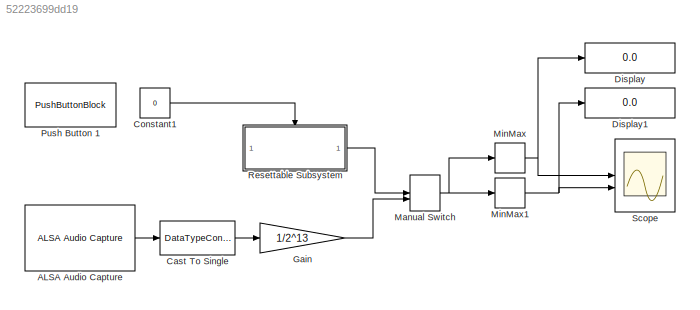
MODEL slx_52223699dd19
KIND model
CONFIG AbsTol = auto
CONFIG EnableMultiTasking = on
CONFIG FixedStep = auto
CONFIG InitFcn = timespan=1;\nsampling_subsample=2;
CONFIG MaxStep = auto
CONFIG MinStep = auto
CONFIG RelTol = 1e-3
CONFIG SampleTimeConstraint = Unconstrained
CONFIG SolverName = FixedStepAuto
CONFIG StartTime = 0.0
CONFIG StopTime = inf
BLOCK [Reference] ALSA Audio Capture   REF=raspberrypiAVlib/ALSA Audio Capture
  SourceBlock = raspberrypiAVlib/ALSA Audio Capture
  SourceType = codertarget.raspi.internal.RaspiALSAAudioCapture
BLOCK [DataTypeConversion] Cast To Single
  OutDataTypeStr = single
  RndMeth = Floor
  SaturateOnIntegerOverflow = off
BLOCK [Constant] Constant1
  Commented = on
  Value = 0
BLOCK [Display] Display
  Decimation = 1
BLOCK [Display] Display1
  Decimation = 1
BLOCK [Gain] Gain
  Gain = 1/2^13
BLOCK [ManualSwitch] Manual Switch
  CurrentSetting = 0
BLOCK [MinMax] MinMax
BLOCK [MinMax] MinMax1
  Function = max
BLOCK [PushButtonBlock] Push Button 1
  ButtonText = trg
  Commented = on
  OffValue = 0.000000
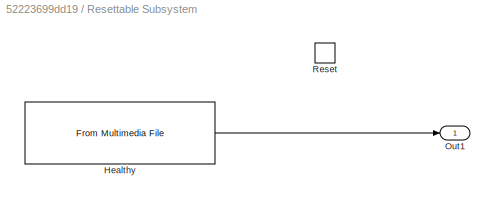
BLOCK [SubSystem] Resettable Subsystem
  Commented = on
  TreatAsAtomicUnit = on
BLOCK [Reference] Resettable Subsystem/Healthy  REF=dspvision/From Multimedia File
  SourceBlock = dspvision/From Multimedia File
  SourceType = From Multimedia File
BLOCK [Outport] Resettable Subsystem/Out1
BLOCK [ResetPort] Resettable Subsystem/Reset
  DisableCoverage = on
BLOCK [Scope] Scope
  Floating = off
  NumInputPorts = 2
  ScopeSpecificationString = Simulink.scopes.TimeScopeBlockCfg('CurrentConfiguration', extmgr.ConfigurationSet(extmgr.Configuration('Core','General UI',true),extmgr.Configuration('Core','Source UI',true),extmgr.Configuration('Sources','WiredSimulink',true),extmgr.Configuration('Visuals','Time Domain',true,'SerializedDisplays',{struct('MinYLimReal','-0.88065','MaxYLimReal','1.04485','YLabelReal','','MinYLimMag','0.00000','MaxY...<+1346ch>
LINE ALSA Audio Capture :1 -> Cast To Single:1
LINE Cast To Single:1 -> Gain:1
LINE Constant1:1 -> Resettable Subsystem:Reset
LINE Gain:1 -> Manual Switch:2
NET Manual Switch:1 -> MinMax1:1, MinMax:1
NET MinMax1:1 -> Display1:1, Scope:2
NET MinMax:1 -> Display:1, Scope:1
LINE Resettable Subsystem/Healthy:1 -> Resettable Subsystem/Out1:1
LINE Resettable Subsystem:1 -> Manual Switch:1
note: NET lines group one-source signal fan-out (src -> all destinations, sorted); 1:1 wires keep LINE
